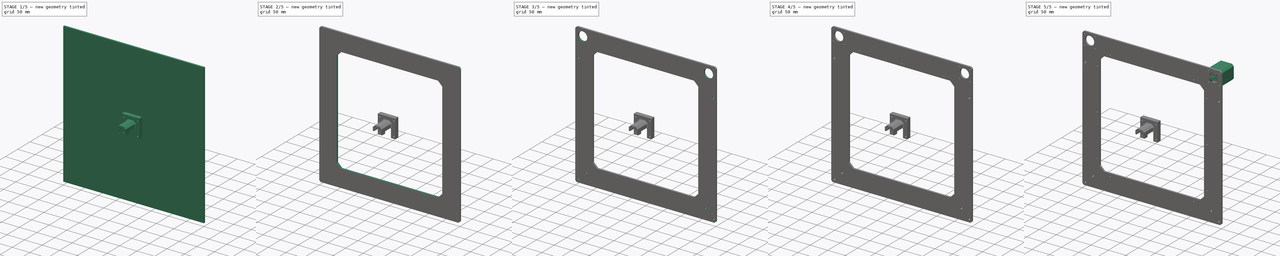
[diagram: build sequence overview — one tinted view per stage of 5, left to right]
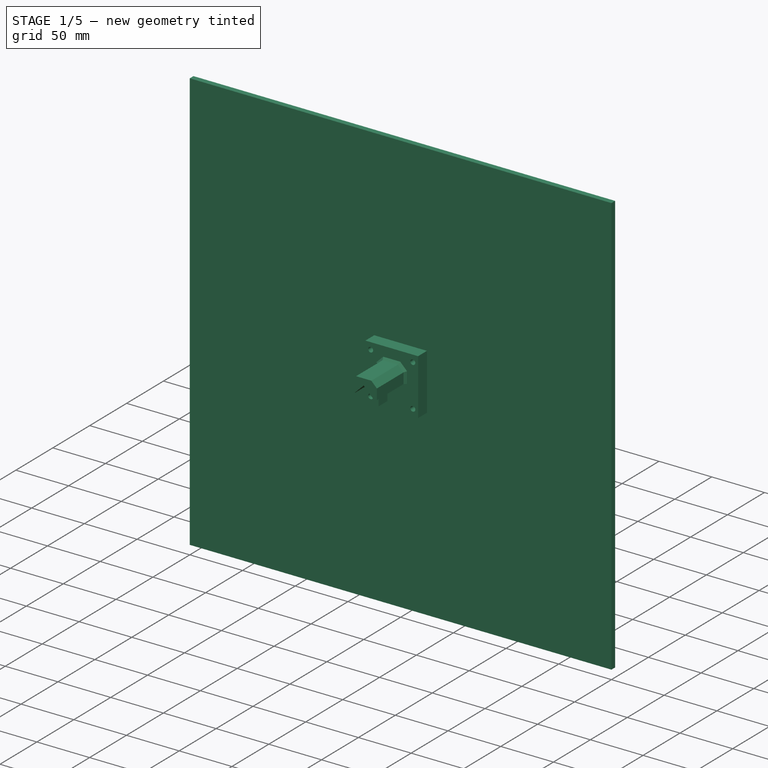
[diagram: stage 1 of 5 — iso view after this stage's code; geometry added in this stage tinted green]
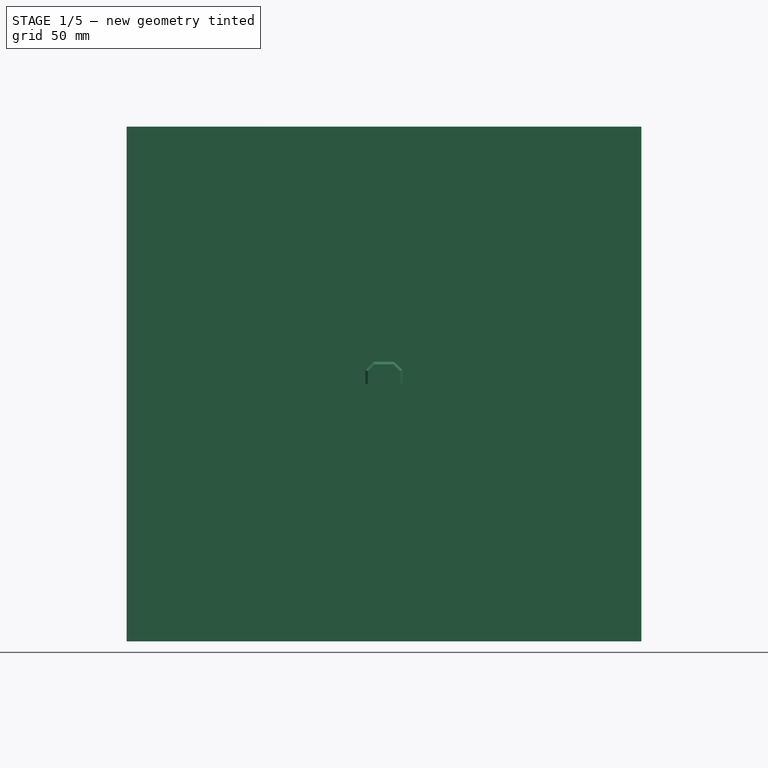
[diagram: stage 1 of 5 — front view after this stage's code; geometry added in this stage tinted green]
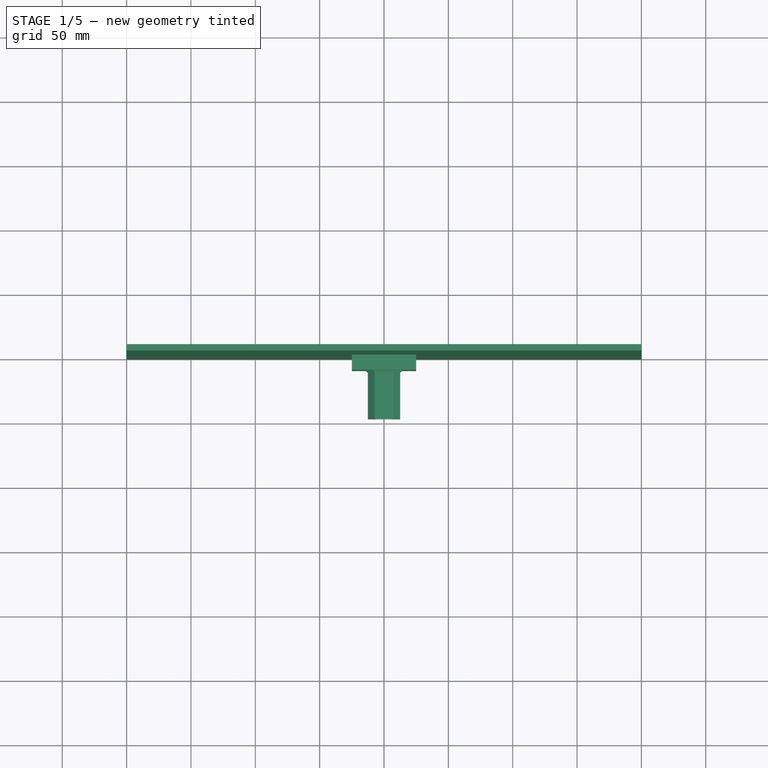
[diagram: stage 1 of 5 — top view after this stage's code; geometry added in this stage tinted green]
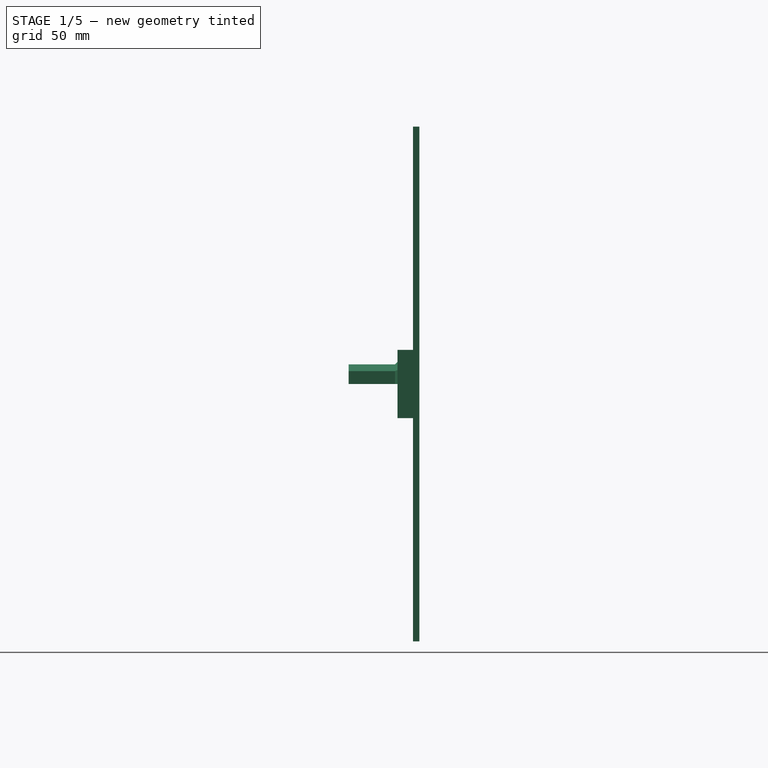
[diagram: stage 1 of 5 — right view after this stage's code; geometry added in this stage tinted green]
FCSTD DOCUMENT  (FreeCAD 0.20R29410 (Git))
Label: elastibot
License: Creative Commons Attribution-ShareAlike
LicenseURL: http://creativecommons.org/licenses/by-sa/4.0/
objects: Sketcher::SketchObject×12, PartDesign::Pad×6, PartDesign::Body×5, PartDesign::Pocket×5, PartDesign::Chamfer×4, PartDesign::Fillet×2, App::FeaturePython×1, PartDesign::Mirrored×1, PartDesign::FeaturePython×1, PartDesign::LinearPattern×1, App::Part×1, Part::FeaturePython×1, PartDesign::PolarPattern×1
note: 56 computed .brp shape members not serialized (recipe doc carries the construction recipe); baked Part::Feature solids carry a one-line shape summary decoded from their .brp

FEATURE [Sketcher::SketchObject] Sketch
  FullyConstrained = false
  MapMode = 5
  Support = -> [XY_Plane]
  expr: Constraints[12] = 40 / pi
  expr: Constraints[27] = 179mm
  sketch-geometry (37):
    g0: LineSegment StartX=-200 StartY=-200 StartZ=0 EndX=-200 EndY=200 EndZ=0
    g1: LineSegment StartX=-200 StartY=200 StartZ=0 EndX=200 EndY=200 EndZ=0
    g2: LineSegment StartX=200 StartY=200 StartZ=0 EndX=200 EndY=-200 EndZ=0
    g3: LineSegment StartX=200 StartY=-200 StartZ=0 EndX=-200 EndY=-200 EndZ=0
    g4: GeomPoint X=0 Y=0 Z=0
    g5: Circle CenterX=179 CenterY=179 CenterZ=0 NormalX=0 NormalY=0 NormalZ=1 AngleXU=0 Radius=6.3662
    g6: Circle CenterX=-179 CenterY=179 CenterZ=0 NormalX=0 NormalY=0 NormalZ=1 AngleXU=0 Radius=6.3662
    g7: LineSegment StartX=200 StartY=200 StartZ=0 EndX=200 EndY=158 EndZ=0
    g8: LineSegment StartX=200 StartY=158 StartZ=0 EndX=158 EndY=158 EndZ=0
    g9: LineSegment StartX=158 StartY=158 StartZ=0 EndX=158 EndY=200 EndZ=0
    g10: LineSegment StartX=158 StartY=200 StartZ=0 EndX=200 EndY=200 EndZ=0
    g11: GeomPoint X=179 Y=179 Z=0
    g12: LineSegment StartX=-30 StartY=30 StartZ=0 EndX=-30 EndY=-30 EndZ=0
    g13: LineSegment StartX=-30 StartY=-30 StartZ=0 EndX=30 EndY=-30 EndZ=0
    g14: LineSegment StartX=30 StartY=-30 StartZ=0 EndX=30 EndY=30 EndZ=0
    g15: LineSegment StartX=30 StartY=30 StartZ=0 EndX=-30 EndY=30 EndZ=0
    g16: GeomPoint X=-1.20919e-09 Y=3.52426e-10 Z=0
    g17: Circle CenterX=-1.20919e-09 CenterY=3.52426e-10 CenterZ=0 NormalX=0 NormalY=0 NormalZ=1 AngleXU=0 Radius=14.5726
    g18: LineSegment StartX=-200 StartY=200 StartZ=0 EndX=-200 EndY=158 EndZ=0
    g19: LineSegment StartX=-200 StartY=158 StartZ=0 EndX=-158 EndY=158 EndZ=0
    g20: LineSegment StartX=-158 StartY=158 StartZ=0 EndX=-158 EndY=200 EndZ=0
    g21: LineSegment StartX=-158 StartY=200 StartZ=0 EndX=-200 EndY=200 EndZ=0
    g22: GeomPoint X=-179 Y=179 Z=0
    g23: LineSegment StartX=30 StartY=30 StartZ=0 EndX=174.364 EndY=183.364 EndZ=0
    g24: LineSegment StartX=30 StartY=-30 StartZ=0 EndX=125.871 EndY=-85.6227 EndZ=0
    g25: LineSegment StartX=135.317 StartY=-81.3208 StartZ=0 EndX=185.251 EndY=177.795 EndZ=0
    g26: Circle CenterX=129.065 CenterY=-80.1162 CenterZ=0 NormalX=0 NormalY=0 NormalZ=1 AngleXU=0 Radius=6.3662
    g27: LineSegment StartX=-30 StartY=30 StartZ=0 EndX=-174.364 EndY=183.364 EndZ=0
    g28: LineSegment StartX=-30 StartY=-30 StartZ=0 EndX=-129.481 EndY=-92.2214 EndZ=0
    g29: LineSegment StartX=-139.129 StartY=-87.9128 StartZ=0 EndX=-185.272 EndY=177.911 EndZ=0
    g30: Circle CenterX=-132.856 CenterY=-86.824 CenterZ=0 NormalX=0 NormalY=0 NormalZ=1 AngleXU=0 Radius=6.3662
    g31: LineSegment StartX=-132.856 StartY=-86.824 StartZ=0 EndX=-170 EndY=-170 EndZ=0
    g32: LineSegment StartX=129.065 StartY=-80.1162 StartZ=0 EndX=170 EndY=-170 EndZ=0
    g33: LineSegment StartX=-170 StartY=-170 StartZ=0 EndX=192.125 EndY=-191.718 EndZ=0
    g34: LineSegment StartX=192.125 StartY=-191.718 StartZ=0 EndX=192.125 EndY=119.9 EndZ=0
    g35: LineSegment StartX=170 StartY=-170 StartZ=0 EndX=-192.125 EndY=-191.718 EndZ=0
    g36: LineSegment StartX=-192.125 StartY=-191.718 StartZ=0 EndX=-192.125 EndY=119.9 EndZ=0
  constraints (80):
    c: Coincident(g0,g1)
    c: Coincident(g1,g2)
    c: Coincident(g2,g3)
    c: Coincident(g3,g0)
    c: Horizontal(g1)
    c: Horizontal(g3)
    c: Vertical(g0)
    c: Vertical(g2)
    c: Symmetric(g1,g0,g4)
    c: Coincident(g4,g-1)
    c: Distance(g1) = 400
    c: Distance(g2) = 400
    c: Diameter(g5) = 12.7324
    c: Equal(g6,g5)
    c: Symmetric(g6,g5,g-2)
    c: Coincident(g7,g8)
    c: Coincident(g8,g9)
    c: Coincident(g9,g10)
    c: Coincident(g10,g7)
    c: Horizontal(g8)
    c: Horizontal(g10)
    c: Vertical(g7)
    c: Vertical(g9)
    c: Symmetric(g8,g7,g11)
    c: Coincident(g11,g5)
    c: Equal(g8,g9)
    c: Distance(g10) = 42
    c: DistanceX(g-2,g5) = 179
    c: DistanceY(g-1,g5) = 179
    c: Coincident(g12,g13)
    c: Coincident(g13,g14)
    c: Coincident(g14,g15)
    c: Coincident(g15,g12)
    c: Horizontal(g13)
    c: Horizontal(g15)
    c: Vertical(g12)
    c: Vertical(g14)
    c: Symmetric(g13,g12,g16)
    c: Equal(g13,g12)
    c: Distance(g15) = 60
    c: Coincident(g17,g16)
    c: Coincident(g18,g19)
    c: Coincident(g19,g20)
    c: Coincident(g20,g21)
    c: Coincident(g21,g18)
    c: Horizontal(g19)
    c: Horizontal(g21)
    c: Vertical(g18)
    c: Vertical(g20)
    c: Symmetric(g19,g18,g22)
    c: Coincident(g22,g6)
    c: Symmetric(g19,g8,g-2)
    c: Coincident(g14,g23)
    c: Coincident(g13,g24)
    c: Equal(g26,g5)
    c: Tangent(g25,g26) = -1.5708
    c: Tangent(g24,g26) = -1.5708
    c: Tangent(g25,g5) = -1.5708
    c: Tangent(g23,g5) = 1.5708
    c: Coincident(g27,g12)
    c: Coincident(g28,g12)
    c: Tangent(g27,g6) = -1.5708
    c: Tangent(g29,g6) = 1.5708
    c: Equal(g30,g5)
    c: Tangent(g29,g30) = 1.5708
    c: Tangent(g28,g30) = 1.5708
    c: Coincident(g31,g30)
    c: Coincident(g32,g26)
    c: Symmetric(g28,g29,g31)
    c: Distance(g31,g3) = 30
    c: Distance(g31,g0) = 30
    c: Symmetric(g31,g32,g-2)
    c: Symmetric(g24,g25,g32)
    c: Coincident(g31,g33)
    c: Coincident(g33,g34)
    c: Vertical(g34)
    c: Coincident(g32,g35)
    c: Coincident(g35,g36)
    c: Symmetric(g36,g34,g-2)
    c: Symmetric(g35,g33,g-2)
FEATURE [PartDesign::Body] Body  label="Simulation"
  Group = -> [Sketch]
  Origin = -> Origin
  Placement = pos=(0,0,0) rot=(1,0,0;1.5708rad)
FEATURE [App::FeaturePython] dd  label="Parameters"  # WARN: FeaturePython — macro-defined, semantics opaque (R4)
  DynamicData = Created with DynamicData (v2.46) workbench. | This is a simple container object built | for holding custom properties.
  ddFrame_heigth = 400
  ddFrame_opening_heigth = 300
  ddFrame_opening_width = 300
  ddFrame_thickness = 5
  ddFrame_width = 400
  ddM3_hole_diameter = 3.4
  ddM3_tapped_hole_diameter = 2.85
  ddM5_hole_diameter = 5.4
  ddM5_tapped_hole_diameter = 4.7
FEATURE [Sketcher::SketchObject] Sketch001
  FullyConstrained = true
  MapMode = 5
  Placement = pos=(0,0,0) rot=(1,0,0;1.5708rad)
  Support = -> [XZ_Plane001]
  expr: Constraints[10] = dd.ddFrame_width
  expr: Constraints[11] = dd.ddFrame_heigth
  sketch-geometry (5):
    g0: LineSegment StartX=200 StartY=-200 StartZ=0 EndX=200 EndY=200 EndZ=0
    g1: LineSegment StartX=200 StartY=200 StartZ=0 EndX=-200 EndY=200 EndZ=0
    g2: LineSegment StartX=-200 StartY=200 StartZ=0 EndX=-200 EndY=-200 EndZ=0
    g3: LineSegment StartX=-200 StartY=-200 StartZ=0 EndX=200 EndY=-200 EndZ=0
    g4: GeomPoint X=0 Y=0 Z=0
  constraints (12):
    c: Coincident(g0,g1)
    c: Coincident(g1,g2)
    c: Coincident(g2,g3)
    c: Coincident(g3,g0)
    c: Horizontal(g1)
    c: Horizontal(g3)
    c: Vertical(g0)
    c: Vertical(g2)
    c: Symmetric(g1,g0,g4)
    c: Coincident(g4,g-1)
    c: Distance(g1) = 400
    c: Distance(g2) = 400
FEATURE [PartDesign::Pad] Pad
  Direction = (0,-1,2e-16)
  Length = 5
  Length2 = 10
  Placement = pos=(0,0,0) rot=(1,0,0;1.5708rad)
  Profile = -> Sketch001
  ReferenceAxis = -> Sketch001 [N_Axis]
  Reversed = true
  Type = 0
  expr: Length = dd.ddFrame_thickness
FEATURE [PartDesign::Body] Body001  label="Frame"
  Group = -> [Sketch001,Pad,Chamfer,Fillet,Sketch002,Pocket,Chamfer001,Fillet001,Sketch003,Pocket001,Mirrored,Sketch008,Pocket003,Sketch009,Pocket004,PolarPattern]
  Origin = -> Origin001
  Tip = -> PolarPattern
FEATURE [Sketcher::SketchObject] Sketch010
  FullyConstrained = false
  MapMode = 5
  Placement = pos=(0,0,0) rot=(1,0,0;1.5708rad)
  Support = -> [XZ_Plane005]
  expr: Constraints[34] = dd.ddM5_tapped_hole_diameter
  sketch-geometry (17):
    g0: LineSegment StartX=-25 StartY=26.5205 StartZ=0 EndX=-25 EndY=-26.5205 EndZ=0
    g1: LineSegment StartX=-25 StartY=-26.5205 StartZ=0 EndX=-12.5 EndY=-26.5205 EndZ=0
    g2: LineSegment StartX=-12.5 StartY=-26.5205 StartZ=0 EndX=-12.5 EndY=10 EndZ=0
    g3: LineSegment StartX=-12.5 StartY=10 StartZ=0 EndX=12.5 EndY=10 EndZ=0
    g4: LineSegment StartX=12.5 StartY=10 StartZ=0 EndX=12.5 EndY=-26.5205 EndZ=0
    g5: LineSegment StartX=12.5 StartY=-26.5205 StartZ=0 EndX=25 EndY=-26.5205 EndZ=0
    g6: LineSegment StartX=25 StartY=-26.5205 StartZ=0 EndX=25 EndY=26.5205 EndZ=0
    g7: LineSegment StartX=25 StartY=26.5205 StartZ=0 EndX=-25 EndY=26.5205 EndZ=0
    g8: LineSegment StartX=20 StartY=-20 StartZ=0 EndX=20 EndY=20 EndZ=0
    g9: LineSegment StartX=20 StartY=20 StartZ=0 EndX=-20 EndY=20 EndZ=0
    g10: LineSegment StartX=-20 StartY=20 StartZ=0 EndX=-20 EndY=-20 EndZ=0
    g11: LineSegment StartX=-20 StartY=-20 StartZ=0 EndX=20 EndY=-20 EndZ=0
    g12: GeomPoint X=1.2e-15 Y=-1.3e-15 Z=0
    g13: Circle CenterX=-20 CenterY=-20 CenterZ=0 NormalX=0 NormalY=0 NormalZ=1 AngleXU=0 Radius=2.35
    g14: Circle CenterX=-20 CenterY=20 CenterZ=0 NormalX=0 NormalY=0 NormalZ=1 AngleXU=0 Radius=2.35
    g15: Circle CenterX=20 CenterY=20 CenterZ=0 NormalX=0 NormalY=0 NormalZ=1 AngleXU=0 Radius=2.35
    g16: Circle CenterX=20 CenterY=-20 CenterZ=0 NormalX=0 NormalY=0 NormalZ=1 AngleXU=0 Radius=2.35
  constraints (39):
    c: Coincident(g0,g1)
    c: Horizontal(g1)
    c: Coincident(g1,g2)
    c: Vertical(g2)
    c: Coincident(g2,g3)
    c: Horizontal(g3)
    c: Coincident(g3,g4)
    c: Vertical(g4)
    c: Coincident(g4,g5)
    c: Coincident(g5,g6)
    c: Coincident(g6,g7)
    c: Coincident(g7,g0)
    c: Coincident(g8,g9)
    c: Coincident(g9,g10)
    c: Coincident(g10,g11)
    c: Coincident(g11,g8)
    c: Horizontal(g9)
    c: Horizontal(g11)
    c: Vertical(g8)
    c: Vertical(g10)
    c: Symmetric(g9,g8,g12)
    c: Coincident(g12,g-1)
    c: Equal(g9,g10)
    c: Distance(g9) = 40
    c: Symmetric(g6,g0,g-2)
    c: Symmetric(g5,g0,g-2)
    c: Symmetric(g1,g4,g-2)
    c: Coincident(g13,g10)
    c: Coincident(g14,g9)
    c: Coincident(g15,g8)
    c: Coincident(g16,g8)
    c: Equal(g16,g15)
    c: Equal(g16,g13)
    c: Equal(g16,g14)
    c: Diameter(g16) = 4.7
    c: Distance(g7) = 50
    c: Symmetric(g0,g0,g-1)
    c: Distance(g1,g4) = 25
    c: DistanceY(g-1,g2) = 10
FEATURE [PartDesign::Pad] Pad004
  Direction = (0,-1,2e-16)
  Length = 12
  Length2 = 10
  Placement = pos=(0,0,0) rot=(1,0,0;1.5708rad)
  Profile = -> Sketch010
  ReferenceAxis = -> Sketch010 [N_Axis]
  Type = 0
FEATURE [Sketcher::SketchObject] Sketch011
  ExternalGeometry = -> [Pad004]
  FullyConstrained = false
  MapMode = 5
  Placement = pos=(0,0,0) rot=(1,0,0;1.5708rad)
  Support = -> [XZ_Plane005]
  sketch-geometry (9):
    g0: LineSegment StartX=-12.5 StartY=0 StartZ=0 EndX=-9.24577 EndY=0 EndZ=0
    g1: LineSegment StartX=-9.24577 StartY=0 StartZ=0 EndX=0 EndY=9.24577 EndZ=0
    g2: LineSegment StartX=0 StartY=9.24577 StartZ=0 EndX=9.24577 EndY=0 EndZ=0
    g3: LineSegment StartX=9.24577 StartY=0 StartZ=0 EndX=12.5 EndY=0 EndZ=0
    g4: LineSegment StartX=12.5 StartY=0 StartZ=0 EndX=12.5 EndY=10 EndZ=0
    g5: LineSegment StartX=12.5 StartY=10 StartZ=0 EndX=7.23318 EndY=15.2668 EndZ=0
    g6: LineSegment StartX=7.23318 StartY=15.2668 StartZ=0 EndX=-7.23318 EndY=15.2668 EndZ=0
    g7: LineSegment StartX=-7.23318 StartY=15.2668 StartZ=0 EndX=-12.5 EndY=10 EndZ=0
    g8: LineSegment StartX=-12.5 StartY=10 StartZ=0 EndX=-12.5 EndY=0 EndZ=0
  constraints (21):
    c: PointOnObject(g0,g-3)
    c: PointOnObject(g0,g-1)
    c: Horizontal(g0)
    c: Coincident(g0,g1)
    c: PointOnObject(g1,g-2)
    c: Coincident(g1,g2)
    c: Coincident(g2,g3)
    c: PointOnObject(g3,g-5)
    c: Horizontal(g3)
    c: Coincident(g3,g4)
    c: Coincident(g4,g-5)
    c: Coincident(g4,g5)
    c: Coincident(g5,g6)
    c: Coincident(g6,g7)
    c: Coincident(g7,g-4)
    c: Coincident(g7,g8)
    c: Coincident(g8,g0)
    c: Symmetric(g6,g5,g-2)
    c: Angle(g1,g2) = 1.5708
    c: Symmetric(g2,g0,g-2)
    c: Angle(g-4,g7) = 0.785398
FEATURE [PartDesign::Pad] Pad005
  BaseFeature = -> Pad004
  Direction = (0,-1,2e-16)
  Length = 50
  Length2 = 10
  Placement = pos=(0,0,0) rot=(1,0,0;1.5708rad)
  Profile = -> Sketch011
  ReferenceAxis = -> Sketch011 [N_Axis]
  Type = 0
FEATURE [PartDesign::Chamfer] Chamfer003
  Angle = 45
  Base = -> Pad005 [Edge25,Edge26,Edge27,Edge28,Edge29]
  BaseFeature = -> Pad005
  ChamferType = 0
  FlipDirection = false
  Placement = pos=(0,0,0) rot=(1,0,0;1.5708rad)
  Size = 2
  Size2 = 1
  SupportTransform = false
  UseAllEdges = false
FEATURE [PartDesign::Body] Body004  label="Mover"
  Group = -> [Sketch010,Pad004,Sketch011,Pad005,Chamfer003]
  Origin = -> Origin005
  Tip = -> Chamfer003
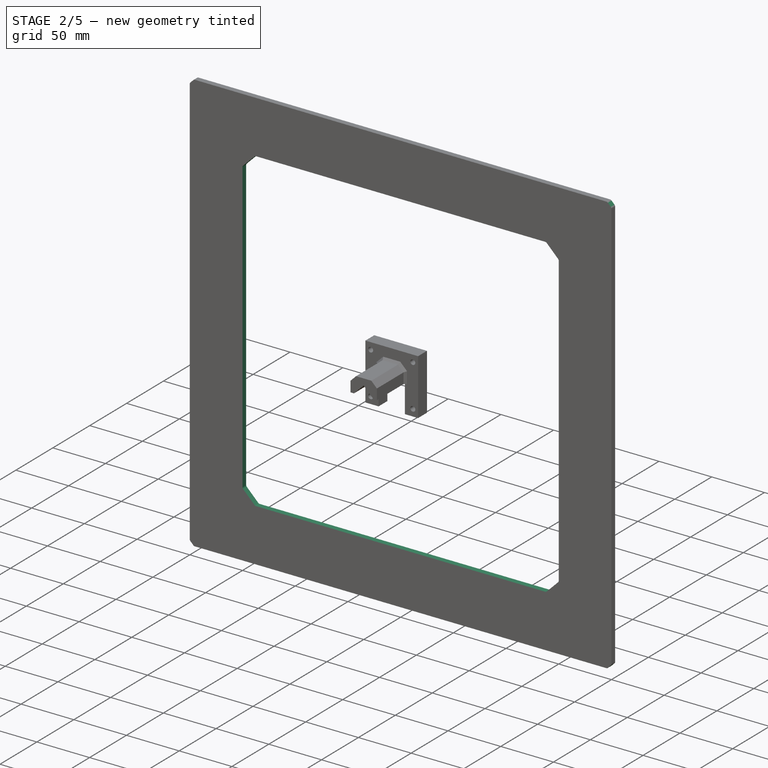
[diagram: stage 2 of 5 — iso view after this stage's code; geometry added in this stage tinted green]
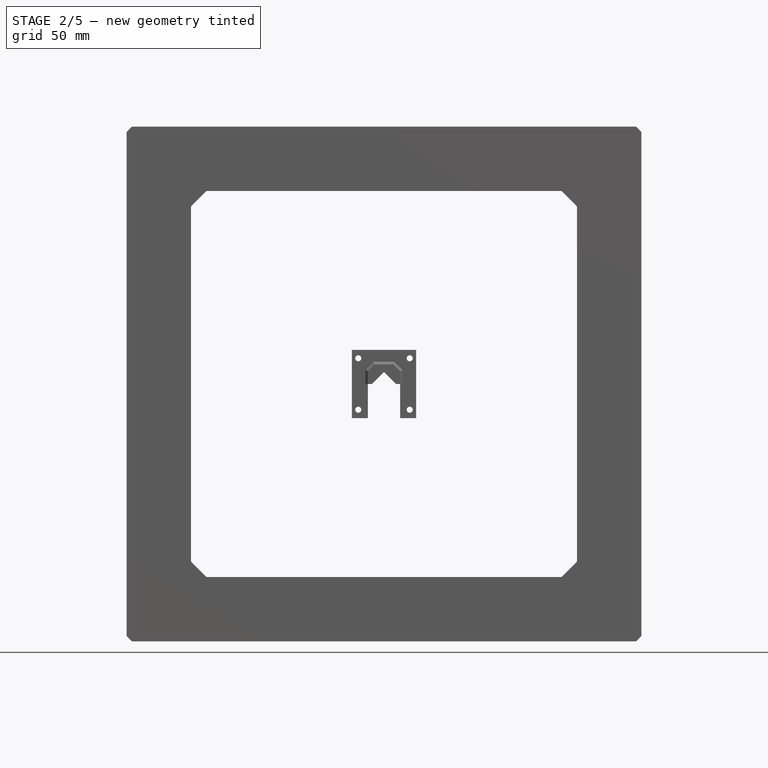
[diagram: stage 2 of 5 — front view after this stage's code; geometry added in this stage tinted green]
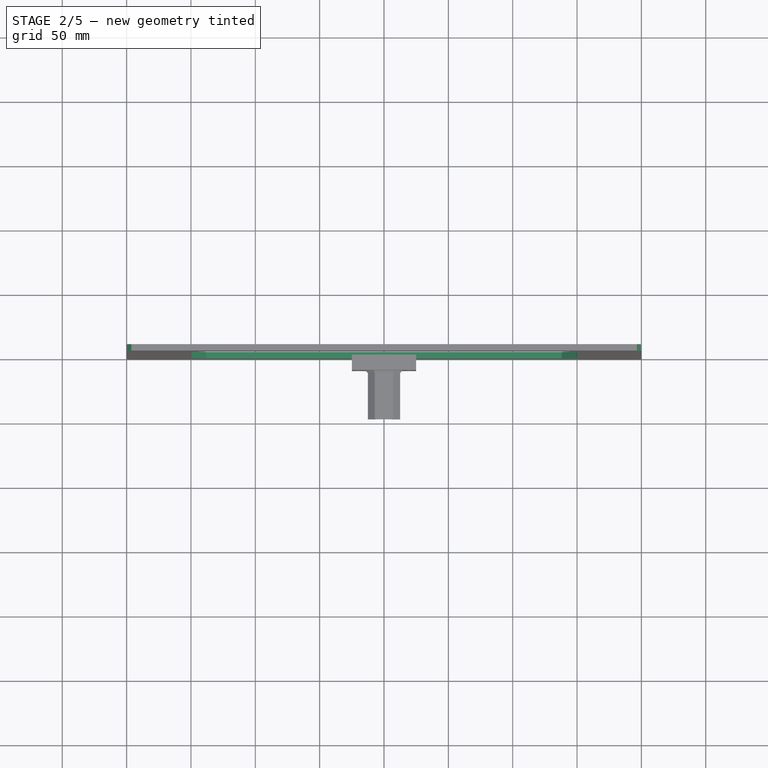
[diagram: stage 2 of 5 — top view after this stage's code; geometry added in this stage tinted green]
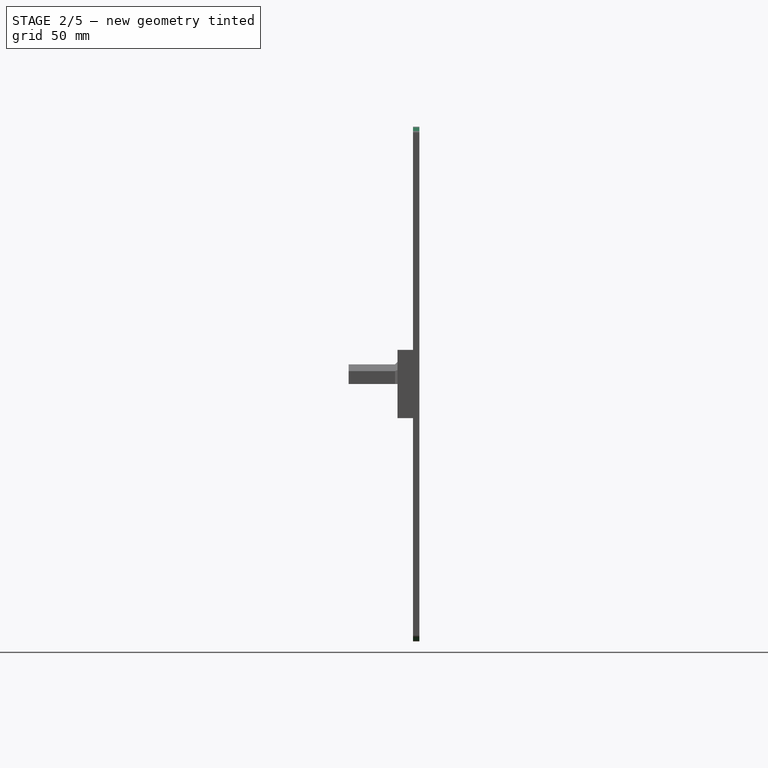
[diagram: stage 2 of 5 — right view after this stage's code; geometry added in this stage tinted green]
FEATURE [PartDesign::Chamfer] Chamfer
  Angle = 45
  Base = -> Pad [Edge5,Edge2,Edge1,Edge8]
  BaseFeature = -> Pad
  ChamferType = 0
  FlipDirection = false
  Placement = pos=(0,0,0) rot=(1,0,0;1.5708rad)
  Size = 4
  Size2 = 1
  SupportTransform = false
  UseAllEdges = false
FEATURE [PartDesign::Fillet] Fillet
  Base = -> Chamfer [Edge14,Edge3,Edge2,Edge12,Edge23,Edge21,Edge24,Edge22]
  BaseFeature = -> Chamfer
  Placement = pos=(0,0,0) rot=(1,0,0;1.5708rad)
  Radius = 2
  SupportTransform = false
  UseAllEdges = false
FEATURE [Sketcher::SketchObject] Sketch002
  FullyConstrained = true
  MapMode = 5
  Placement = pos=(0,0,0) rot=(1,0,0;1.5708rad)
  Support = -> [XZ_Plane001]
  expr: Constraints[10] = dd.ddFrame_opening_width
  expr: Constraints[11] = dd.ddFrame_opening_heigth
  sketch-geometry (5):
    g0: LineSegment StartX=150 StartY=-150 StartZ=0 EndX=150 EndY=150 EndZ=0
    g1: LineSegment StartX=150 StartY=150 StartZ=0 EndX=-150 EndY=150 EndZ=0
    g2: LineSegment StartX=-150 StartY=150 StartZ=0 EndX=-150 EndY=-150 EndZ=0
    g3: LineSegment StartX=-150 StartY=-150 StartZ=0 EndX=150 EndY=-150 EndZ=0
    g4: GeomPoint X=0 Y=0 Z=0
  constraints (12):
    c: Coincident(g0,g1)
    c: Coincident(g1,g2)
    c: Coincident(g2,g3)
    c: Coincident(g3,g0)
    c: Horizontal(g1)
    c: Horizontal(g3)
    c: Vertical(g0)
    c: Vertical(g2)
    c: Symmetric(g1,g0,g4)
    c: Coincident(g4,g-1)
    c: Distance(g1) = 300
    c: Distance(g0) = 300
FEATURE [PartDesign::Pocket] Pocket
  BaseFeature = -> Fillet
  Direction = (0,1,-2e-16)
  Length = 5
  Length2 = 5
  Placement = pos=(0,0,0) rot=(1,0,0;1.5708rad)
  Profile = -> Sketch002
  ReferenceAxis = -> Sketch002 [N_Axis]
  Type = 1
FEATURE [PartDesign::Chamfer] Chamfer001
  Angle = 45
  Base = -> Pocket [Edge58,Edge57,Edge60,Edge59]
  BaseFeature = -> Pocket
  ChamferType = 0
  FlipDirection = false
  Placement = pos=(0,0,0) rot=(1,0,0;1.5708rad)
  Size = 12
  Size2 = 1
  SupportTransform = false
  UseAllEdges = false
FEATURE [PartDesign::Fillet] Fillet001
  Base = -> Chamfer001 [Edge36,Edge32,Edge28,Edge25,Edge34,Edge38,Edge30,Edge26]
  BaseFeature = -> Chamfer001
  Placement = pos=(0,0,0) rot=(1,0,0;1.5708rad)
  Radius = 2
  SupportTransform = false
  UseAllEdges = false
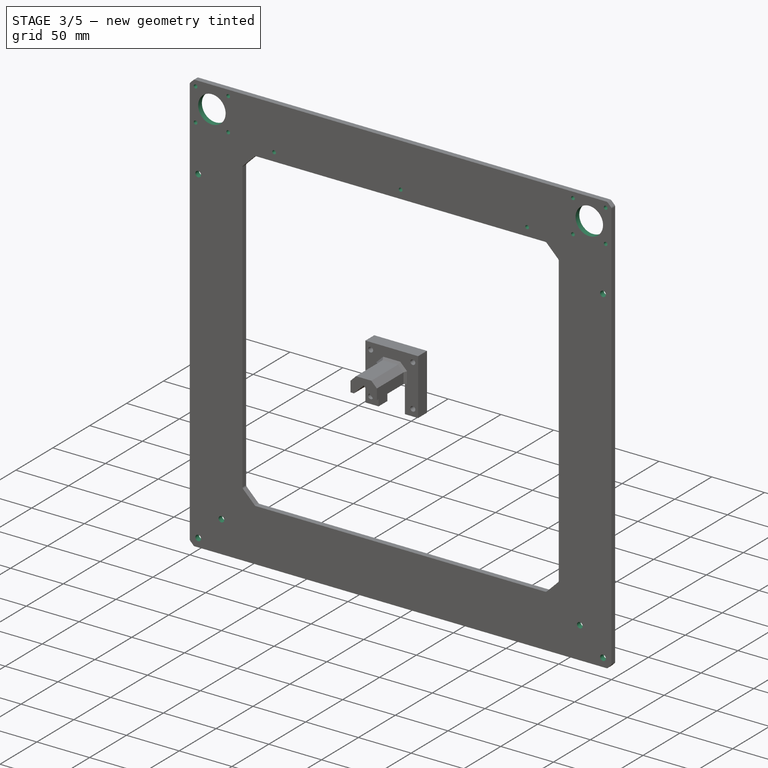
[diagram: stage 3 of 5 — iso view after this stage's code; geometry added in this stage tinted green]
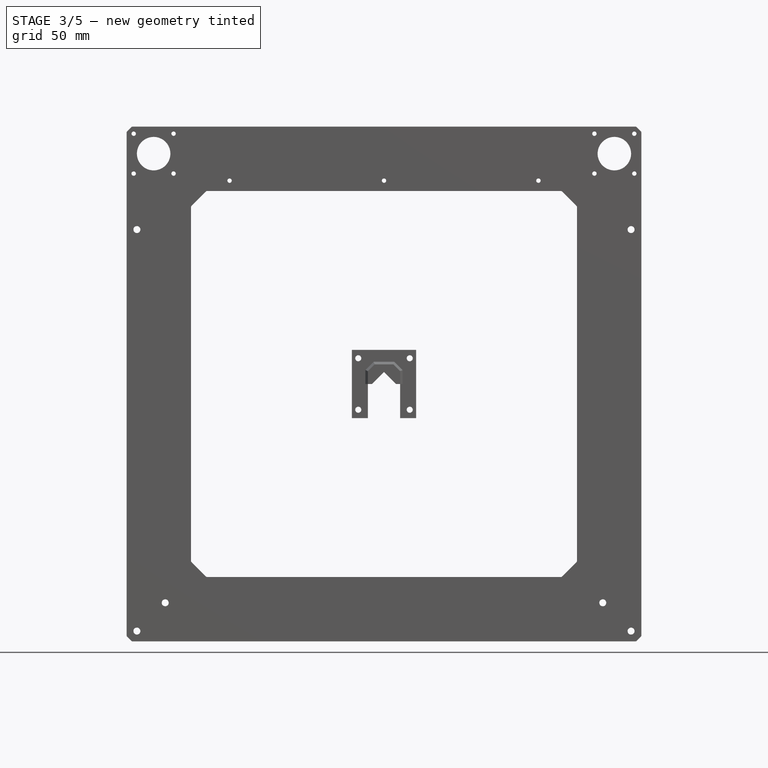
[diagram: stage 3 of 5 — front view after this stage's code; geometry added in this stage tinted green]
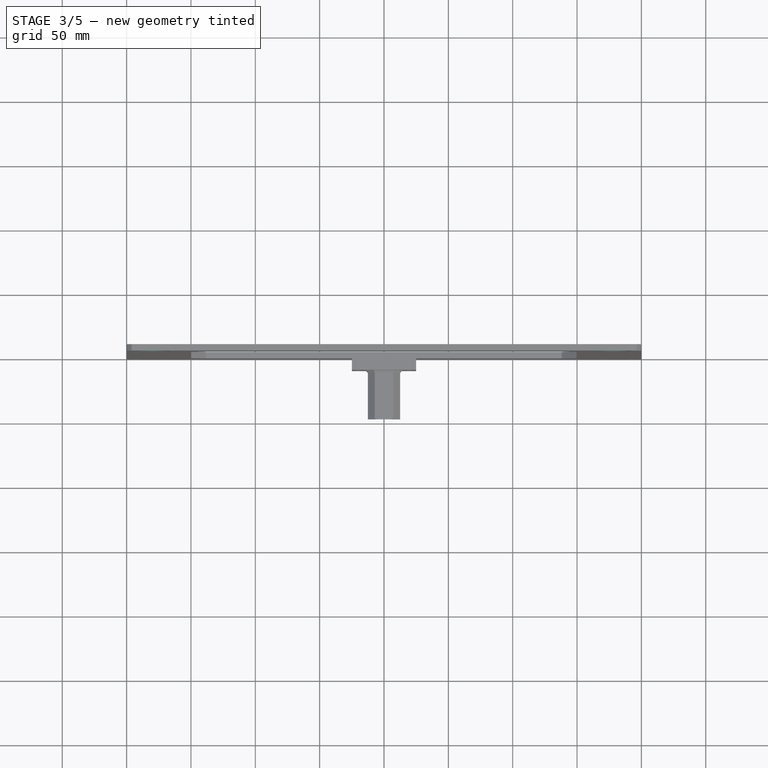
[diagram: stage 3 of 5 — top view after this stage's code; geometry added in this stage tinted green]
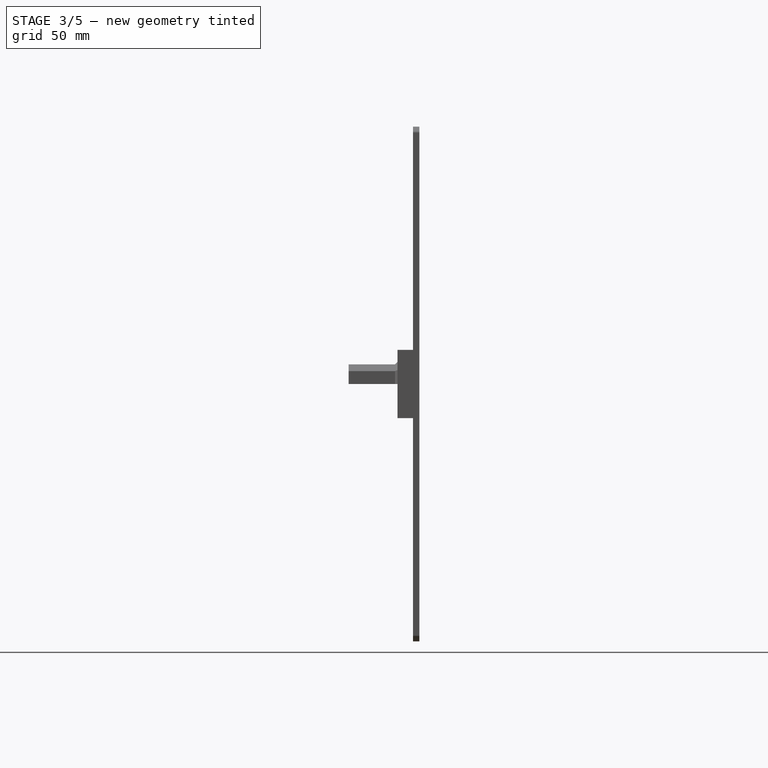
[diagram: stage 3 of 5 — right view after this stage's code; geometry added in this stage tinted green]
FEATURE [Sketcher::SketchObject] Sketch003
  FullyConstrained = true
  MapMode = 5
  Placement = pos=(0,0,0) rot=(1,0,0;1.5708rad)
  Support = -> [XZ_Plane001]
  expr: .Constraints.motorx = dd.ddFrame_width / -2 + 21
  expr: .Constraints.motorz = dd.ddFrame_heigth / 2 - 21
  expr: Constraints[22] = dd.ddM3_hole_diameter
  sketch-geometry (10):
    g0: LineSegment StartX=-194.5 StartY=194.5 StartZ=0 EndX=-194.5 EndY=163.5 EndZ=0
    g1: LineSegment StartX=-194.5 StartY=163.5 StartZ=0 EndX=-163.5 EndY=163.5 EndZ=0
    g2: LineSegment StartX=-163.5 StartY=163.5 StartZ=0 EndX=-163.5 EndY=194.5 EndZ=0
    g3: LineSegment StartX=-163.5 StartY=194.5 StartZ=0 EndX=-194.5 EndY=194.5 EndZ=0
    g4: GeomPoint X=-179 Y=179 Z=0
    g5: Circle CenterX=-179 CenterY=179 CenterZ=0 NormalX=0 NormalY=0 NormalZ=1 AngleXU=0 Radius=13
    g6: Circle CenterX=-163.5 CenterY=194.5 CenterZ=0 NormalX=0 NormalY=0 NormalZ=1 AngleXU=0 Radius=1.7
    g7: Circle CenterX=-194.5 CenterY=194.5 CenterZ=0 NormalX=0 NormalY=0 NormalZ=1 AngleXU=0 Radius=1.7
    g8: Circle CenterX=-194.5 CenterY=163.5 CenterZ=0 NormalX=0 NormalY=0 NormalZ=1 AngleXU=0 Radius=1.7
    g9: Circle CenterX=-163.5 CenterY=163.5 CenterZ=0 NormalX=0 NormalY=0 NormalZ=1 AngleXU=0 Radius=1.7
  constraints (23):
    c: Coincident(g0,g1)
    c: Coincident(g1,g2)
    c: Coincident(g2,g3)
    c: Coincident(g3,g0)
    c: Horizontal(g1)
    c: Horizontal(g3)
    c: Vertical(g0)
    c: Vertical(g2)
    c: Symmetric(g1,g0,g4)
    c: Coincident(g5,g4)
    c: Distance(g3) = 31
    c: Equal(g3,g2)
    c: Diameter(g5) = 26
    c: Coincident(g6,g2)
    c: Coincident(g7,g0)
    c: Coincident(g8,g0)
    c: Coincident(g9,g1)
    c: DistanceX(g-2,g5) = -179  'motorx'
    c: DistanceY(g-1,g5) = 179  'motorz'
    c: Equal(g7,g6)
    c: Equal(g7,g9)
    c: Equal(g7,g8)
    c: Diameter(g7) = 3.4
FEATURE [PartDesign::Pocket] Pocket001
  BaseFeature = -> Fillet001
  Direction = (0,1,-2e-16)
  Length = 5
  Length2 = 5
  Placement = pos=(0,0,0) rot=(1,0,0;1.5708rad)
  Profile = -> Sketch003
  ReferenceAxis = -> Sketch003 [N_Axis]
  Type = 1
FEATURE [PartDesign::Mirrored] Mirrored
  BaseFeature = -> Pocket001
  MirrorPlane = -> Sketch003 [V_Axis]
  Originals = -> [Pocket001]
  Placement = pos=(0,0,0) rot=(1,0,0;1.5708rad)
FEATURE [Sketcher::SketchObject] Sketch008
  FullyConstrained = true
  MapMode = 5
  Placement = pos=(0,0,0) rot=(1,0,0;1.5708rad)
  Support = -> [XZ_Plane001]
  expr: Constraints[10] = dd.ddFrame_heigth / -2 + 8
  expr: Constraints[11] = dd.ddFrame_width / -2 + 8
  expr: Constraints[13] = dd.ddFrame_heigth / 2 - 80
  expr: Constraints[14] = dd.ddFrame_width / -2 + 30
  expr: Constraints[15] = dd.ddFrame_width / -2 + 30
  expr: Constraints[5] = dd.ddM5_hole_diameter
  expr: Constraints[9] = dd.ddM5_hole_diameter
  sketch-geometry (6):
    g0: Circle CenterX=-192 CenterY=120 CenterZ=0 NormalX=0 NormalY=0 NormalZ=1 AngleXU=0 Radius=2.7
    g1: Circle CenterX=-192 CenterY=-192 CenterZ=0 NormalX=0 NormalY=0 NormalZ=1 AngleXU=0 Radius=2.7
    g2: Circle CenterX=192 CenterY=-192 CenterZ=0 NormalX=0 NormalY=0 NormalZ=1 AngleXU=0 Radius=2.7
    g3: Circle CenterX=192 CenterY=120 CenterZ=0 NormalX=0 NormalY=0 NormalZ=1 AngleXU=0 Radius=2.7
    g4: Circle CenterX=170 CenterY=-170 CenterZ=0 NormalX=0 NormalY=0 NormalZ=1 AngleXU=0 Radius=2.7
    g5: Circle CenterX=-170 CenterY=-170 CenterZ=0 NormalX=0 NormalY=0 NormalZ=1 AngleXU=0 Radius=2.7
  constraints (16):
    c: Vertical(g1,g0)
    c: Vertical(g3,g2)
    c: Symmetric(g5,g4,g-2)
    c: Horizontal(g3,g0)
    c: Equal(g0,g3)
    c: Diameter(g0) = 5.4
    c: Equal(g2,g4)
    c: Equal(g2,g5)
    c: Equal(g2,g1)
    c: Diameter(g2) = 5.4
    c: DistanceY(g-1,g1) = -192
    c: DistanceX(g-2,g1) = -192
    c: Symmetric(g2,g1,g-2)
    c: DistanceY(g-1,g0) = 120
    c: DistanceX(g-2,g5) = -170
    c: DistanceY(g-1,g5) = -170
FEATURE [PartDesign::Pocket] Pocket003
  BaseFeature = -> Mirrored
  Direction = (0,1,-2e-16)
  Length = 5
  Length2 = 5
  Placement = pos=(0,0,0) rot=(1,0,0;1.5708rad)
  Profile = -> Sketch008
  ReferenceAxis = -> Sketch008 [N_Axis]
  Type = 1
FEATURE [Sketcher::SketchObject] Sketch009
  FullyConstrained = true
  MapMode = 5
  Placement = pos=(0,0,0) rot=(1,0,0;1.5708rad)
  Support = -> [XZ_Plane001]
  expr: Constraints[5] = dd.ddM3_hole_diameter
  expr: Constraints[6] = dd.ddFrame_opening_heigth / 2 + 8
  expr: Constraints[7] = dd.ddFrame_opening_width / 2 - 30
  sketch-geometry (3):
    g0: Circle CenterX=-120 CenterY=158 CenterZ=0 NormalX=0 NormalY=0 NormalZ=1 AngleXU=0 Radius=1.7
    g1: Circle CenterX=0 CenterY=158 CenterZ=0 NormalX=0 NormalY=0 NormalZ=1 AngleXU=0 Radius=1.7
    g2: Circle CenterX=120 CenterY=158 CenterZ=0 NormalX=0 NormalY=0 NormalZ=1 AngleXU=0 Radius=1.7
  constraints (8):
    c: PointOnObject(g1,g-2)
    c: Symmetric(g2,g0,g-2)
    c: Horizontal(g0,g1)
    c: Equal(g1,g0)
    c: Equal(g1,g2)
    c: Diameter(g1) = 3.4
    c: DistanceY(g-1,g1) = 158
    c: DistanceX(g-2,g2) = 120
FEATURE [PartDesign::Pocket] Pocket004
  BaseFeature = -> Pocket003
  Direction = (0,1,-2e-16)
  Length = 5
  Length2 = 5
  Placement = pos=(0,0,0) rot=(1,0,0;1.5708rad)
  Profile = -> Sketch009
  ReferenceAxis = -> Sketch009 [N_Axis]
  Type = 1
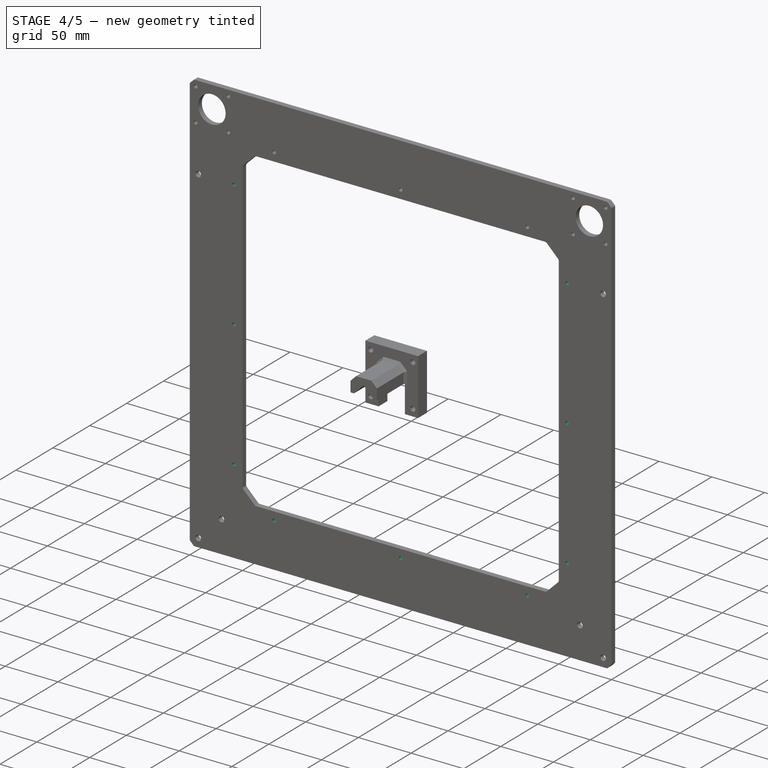
[diagram: stage 4 of 5 — iso view after this stage's code; geometry added in this stage tinted green]
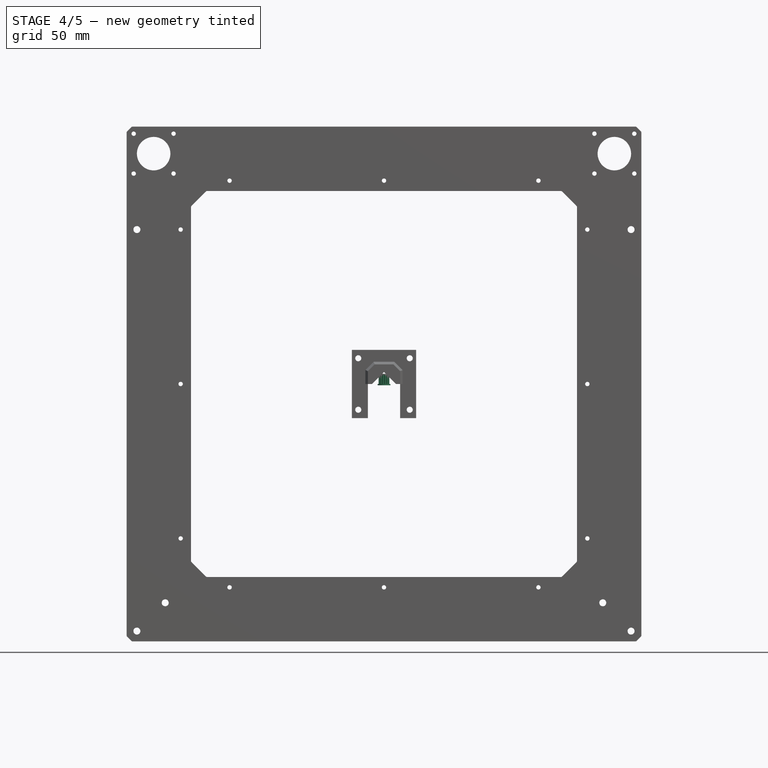
[diagram: stage 4 of 5 — front view after this stage's code; geometry added in this stage tinted green]
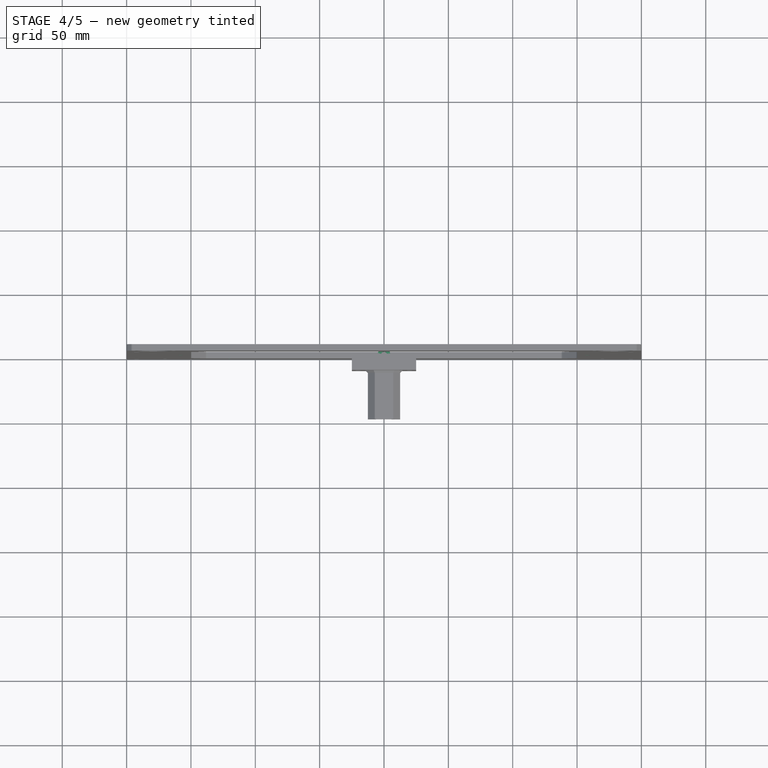
[diagram: stage 4 of 5 — top view after this stage's code; geometry added in this stage tinted green]
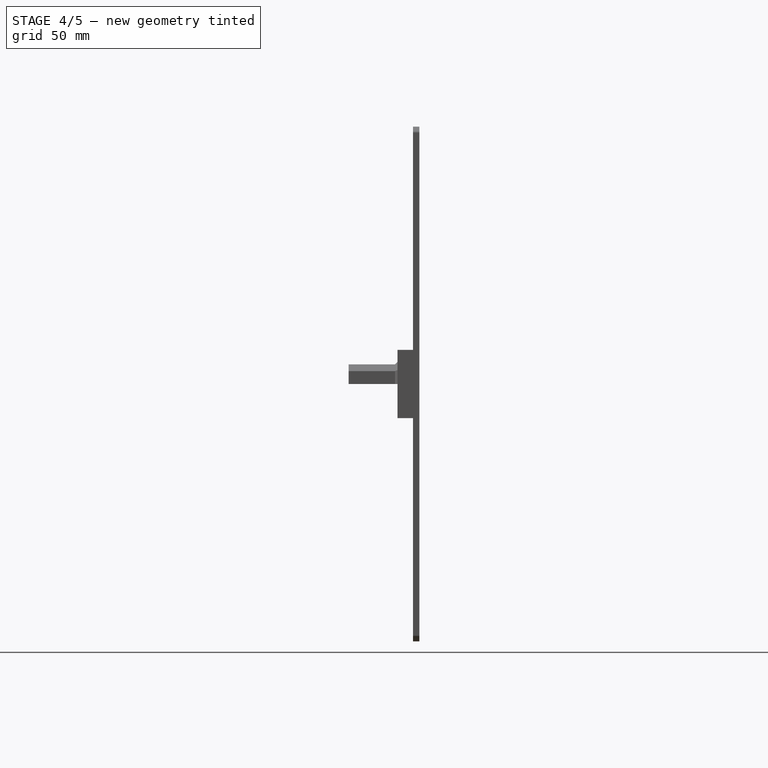
[diagram: stage 4 of 5 — right view after this stage's code; geometry added in this stage tinted green]
FEATURE [PartDesign::Body] Body002  label="Nema17 stepper motor"
  Group = -> [Sketch004,Pad001,Chamfer002,Sketch005,Pad002]
  Origin = -> Origin002
  Placement = pos=(-179,5,179) rot=(0,0,1;0rad)
  Tip = -> Pad002
  expr: .Placement.Base.x = Sketch003.Constraints.motorx
  expr: .Placement.Base.y = dd.ddFrame_thickness
  expr: .Placement.Base.z = Sketch003.Constraints.motorz
FEATURE [PartDesign::FeaturePython] timinggear  # WARN: FeaturePython — macro-defined, semantics opaque (R4)
  AttacherType = Attacher::AttachEngine3D
  h = 0.75
  height = 7
  offset = 0.4
  pitch = 2
  r0 = 0.555
  r1 = 1
  rs = 0.15
  teeth = 14
  type = 0
  u = 0.254
  version = 0.0.3
FEATURE [Sketcher::SketchObject] Sketch006
  FullyConstrained = true
  MapMode = 5
  Support = -> [XY_Plane004]
  sketch-geometry (1):
    g0: Circle CenterX=0 CenterY=0 CenterZ=0 NormalX=0 NormalY=0 NormalZ=1 AngleXU=0 Radius=5
  constraints (2):
    c: Coincident(g0,g-1)
    c: Diameter(g0) = 10
FEATURE [PartDesign::Pad] Pad003
  BaseFeature = -> timinggear
  Direction = (0,0,1)
  Length = 1
  Length2 = 10
  Profile = -> Sketch006
  ReferenceAxis = -> Sketch006 [N_Axis]
  Reversed = true
  Type = 0
FEATURE [PartDesign::LinearPattern] LinearPattern
  BaseFeature = -> Pad003
  Direction = -> Z_Axis004
  Length = 8
  Occurrences = 2
  Originals = -> [Pad003]
  expr: Length = timinggear.height + Pad003.Length
FEATURE [Sketcher::SketchObject] Sketch007
  AttachmentOffset = pos=(0,0,-1) rot=(0,0,1;0rad)
  FullyConstrained = true
  MapMode = 5
  Placement = pos=(0,0,-1) rot=(0,0,1;0rad)
  Support = -> [XY_Plane004]
  expr: .AttachmentOffset.Base.z = -Pad003.Length
  sketch-geometry (1):
    g0: Circle CenterX=0 CenterY=0 CenterZ=0 NormalX=0 NormalY=0 NormalZ=1 AngleXU=0 Radius=2.5
  constraints (2):
    c: Coincident(g0,g-1)
    c: Diameter(g0) = 5
FEATURE [PartDesign::Pocket] Pocket002
  BaseFeature = -> LinearPattern
  Direction = (0,0,-1)
  Length = 5
  Length2 = 5
  Profile = -> Sketch007
  ReferenceAxis = -> Sketch007 [N_Axis]
  Reversed = true
  Type = 1
FEATURE [PartDesign::PolarPattern] PolarPattern
  Angle = 360
  Axis = -> Sketch009 [N_Axis]
  BaseFeature = -> Pocket004
  Occurrences = 4
  Originals = -> [Pocket004]
  Placement = pos=(0,0,0) rot=(1,0,0;1.5708rad)
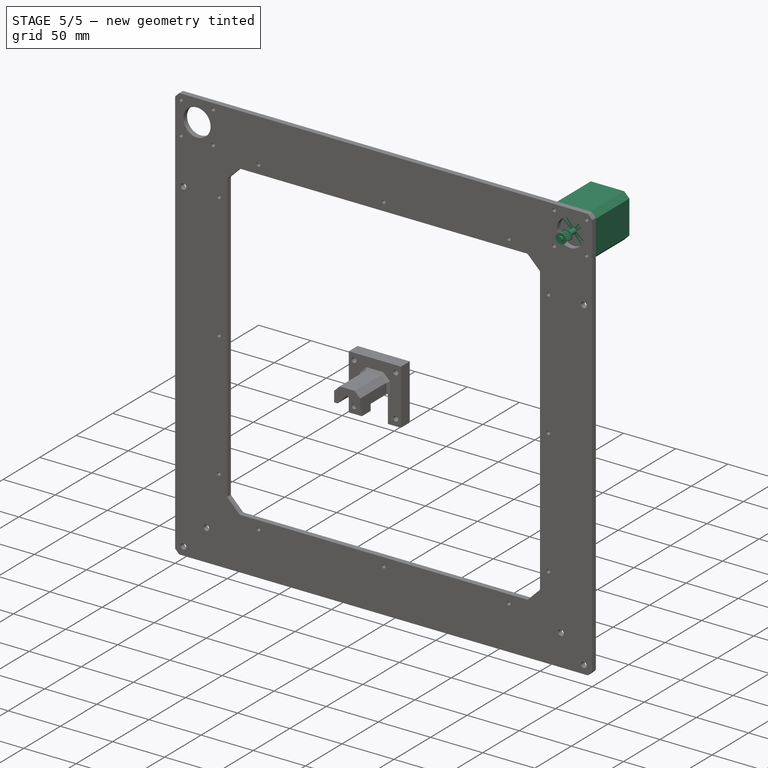
[diagram: stage 5 of 5 — iso view after this stage's code; geometry added in this stage tinted green]
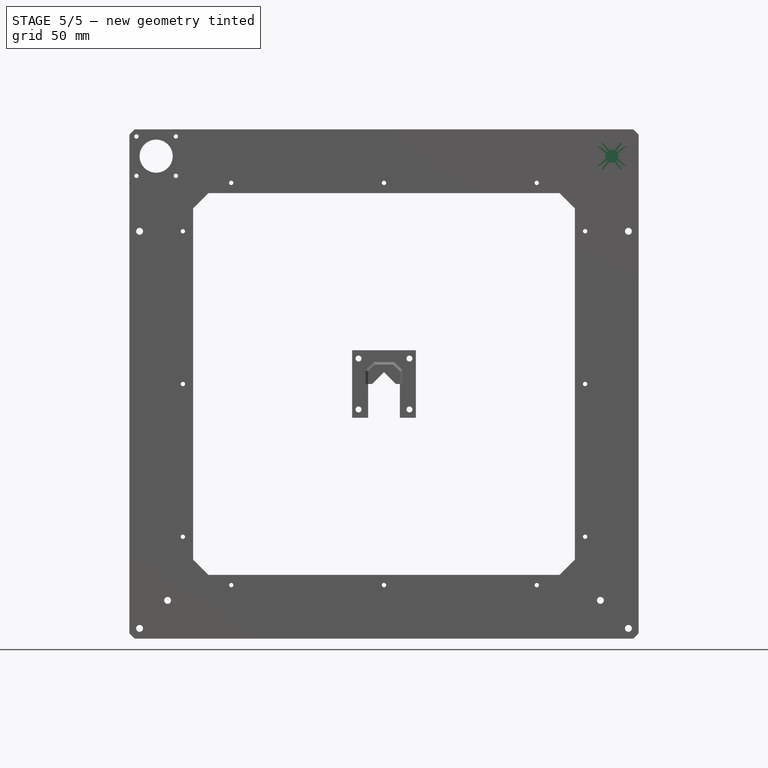
[diagram: stage 5 of 5 — front view after this stage's code; geometry added in this stage tinted green]
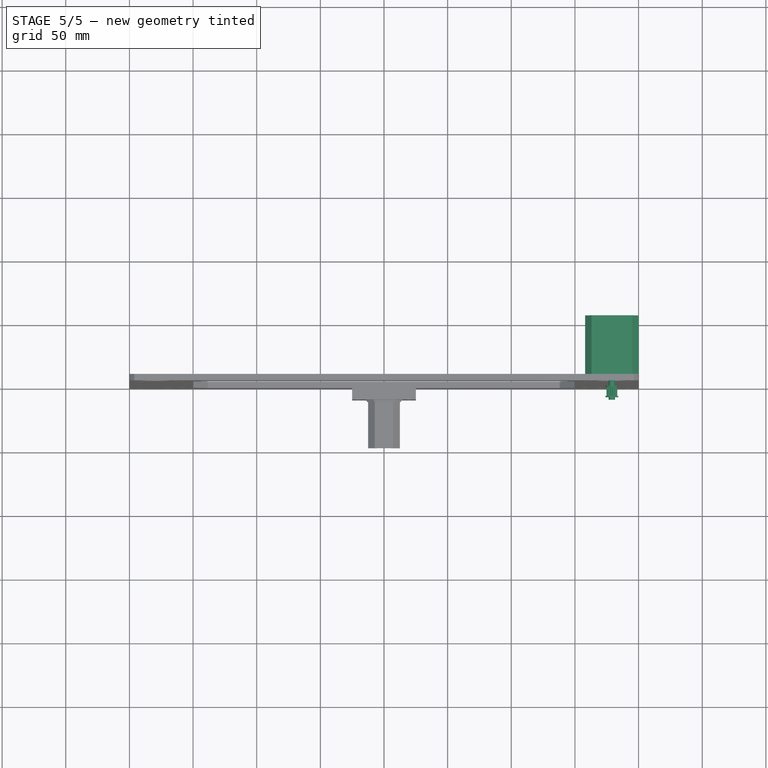
[diagram: stage 5 of 5 — top view after this stage's code; geometry added in this stage tinted green]
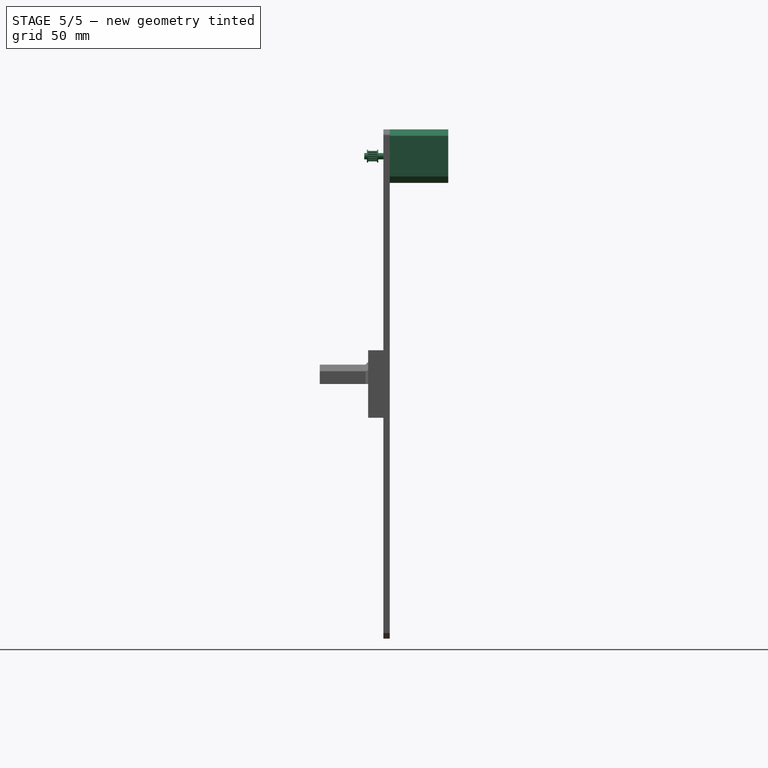
[diagram: stage 5 of 5 — right view after this stage's code; geometry added in this stage tinted green]
FEATURE [Sketcher::SketchObject] Sketch004
  FullyConstrained = true
  MapMode = 5
  Placement = pos=(0,0,0) rot=(1,0,0;1.5708rad)
  Support = -> [XZ_Plane002]
  expr: Constraints[11] = 42
  sketch-geometry (5):
    g0: LineSegment StartX=21 StartY=21 StartZ=0 EndX=21 EndY=-21 EndZ=0
    g1: LineSegment StartX=21 StartY=-21 StartZ=0 EndX=-21 EndY=-21 EndZ=0
    g2: LineSegment StartX=-21 StartY=-21 StartZ=0 EndX=-21 EndY=21 EndZ=0
    g3: LineSegment StartX=-21 StartY=21 StartZ=0 EndX=21 EndY=21 EndZ=0
    g4: GeomPoint X=-1e-16 Y=0 Z=0
  constraints (12):
    c: Coincident(g0,g1)
    c: Coincident(g1,g2)
    c: Coincident(g2,g3)
    c: Coincident(g3,g0)
    c: Horizontal(g1)
    c: Horizontal(g3)
    c: Vertical(g0)
    c: Vertical(g2)
    c: Symmetric(g1,g0,g4)
    c: Coincident(g4,g-1)
    c: Equal(g1,g2)
    c: Distance(g1) = 42
FEATURE [PartDesign::Pad] Pad001
  Direction = (0,-1,2e-16)
  Length = 46
  Length2 = 10
  Placement = pos=(0,0,0) rot=(1,0,0;1.5708rad)
  Profile = -> Sketch004
  ReferenceAxis = -> Sketch004 [N_Axis]
  Reversed = true
  Type = 0
FEATURE [PartDesign::Chamfer] Chamfer002
  Angle = 45
  Base = -> Pad001 [Edge1,Edge2,Edge5,Edge8]
  BaseFeature = -> Pad001
  ChamferType = 0
  FlipDirection = false
  Placement = pos=(0,0,0) rot=(1,0,0;1.5708rad)
  Size = 5
  Size2 = 1
  SupportTransform = false
  UseAllEdges = false
FEATURE [Sketcher::SketchObject] Sketch005
  FullyConstrained = true
  MapMode = 5
  Placement = pos=(0,0,0) rot=(1,0,0;1.5708rad)
  Support = -> [Chamfer002]
  sketch-geometry (1):
    g0: Circle CenterX=0 CenterY=0 CenterZ=0 NormalX=0 NormalY=0 NormalZ=1 AngleXU=0 Radius=2.5
  constraints (2):
    c: Coincident(g0,g-1)
    c: Diameter(g0) = 5
FEATURE [PartDesign::Pad] Pad002
  BaseFeature = -> Chamfer002
  Direction = (0,-1,2e-16)
  Length = 20
  Length2 = 10
  Placement = pos=(0,0,0) rot=(1,0,0;1.5708rad)
  Profile = -> Sketch005
  ReferenceAxis = -> Sketch005 [N_Axis]
  Type = 0
FEATURE [PartDesign::Body] Body003  label="GT2 pulley"
  Group = -> [timinggear,Sketch006,Pad003,LinearPattern,Sketch007,Pocket002]
  Origin = -> Origin004
  Placement = pos=(-179,-5,179) rot=(1,0,0;1.5708rad)
  Tip = -> Pocket002
  expr: .Placement.Base.x = Sketch003.Constraints.motorx
  expr: .Placement.Base.z = Sketch003.Constraints.motorz
FEATURE [App::Part] Part  label="Stepper and pulley"
  Group = -> [Body002,Body003]
  Origin = -> Origin003
FEATURE [Part::FeaturePython] Clone  label="Stepper and pulley001"  # Draft clone (typed FeaturePython)
  AttacherType = Attacher::AttachEngine3D
  Fuse = false
  Objects = -> [Part]
  Placement = pos=(358,0,0) rot=(0,0,1;0rad)
  Scale = (1,1,1)
  expr: .Placement.Base.x = Sketch003.Constraints.motorx * -2
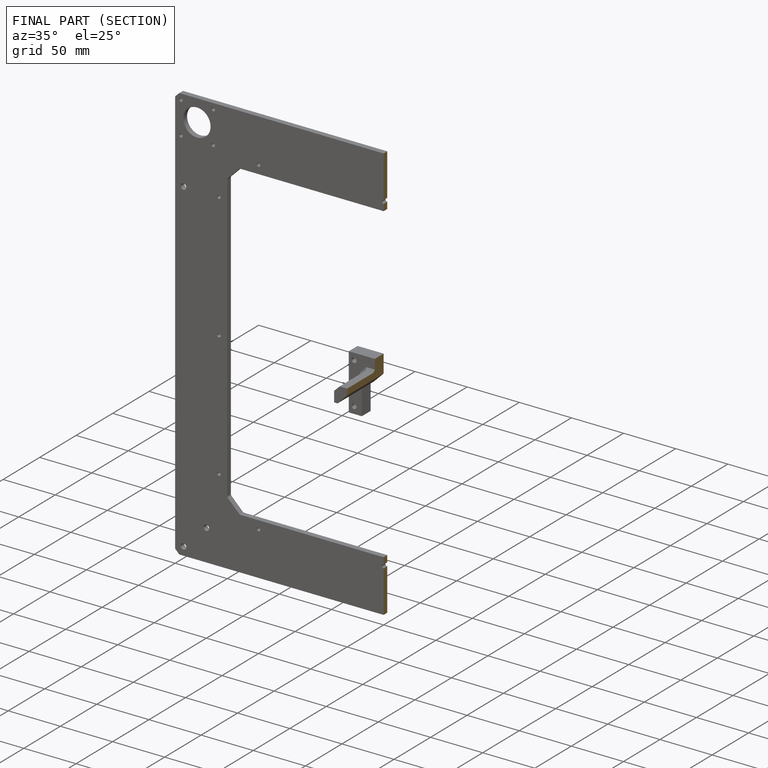
[diagram: finished part — half-section view (interior)]
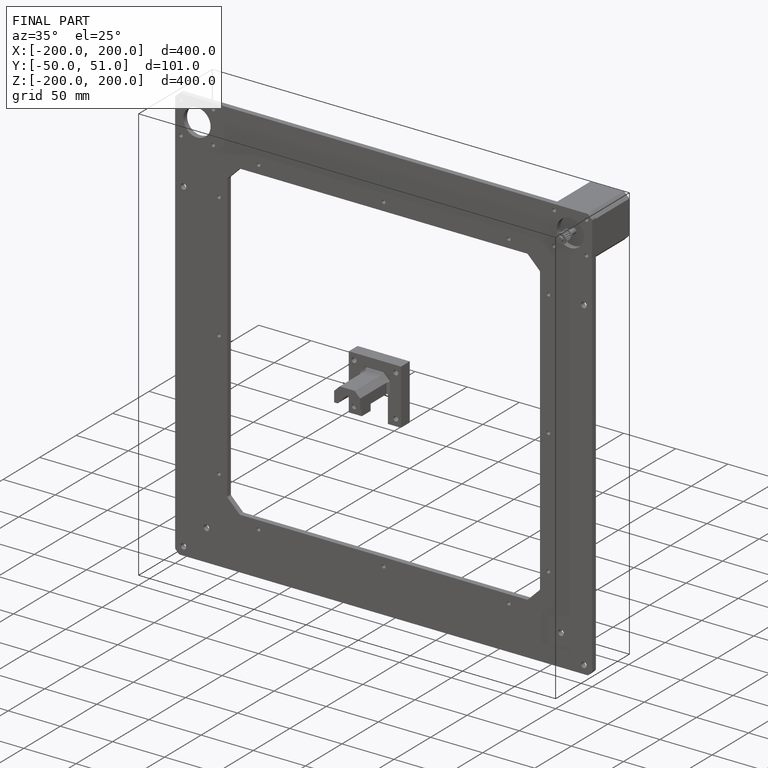
[diagram: finished part — iso view with bounding-box wireframe]
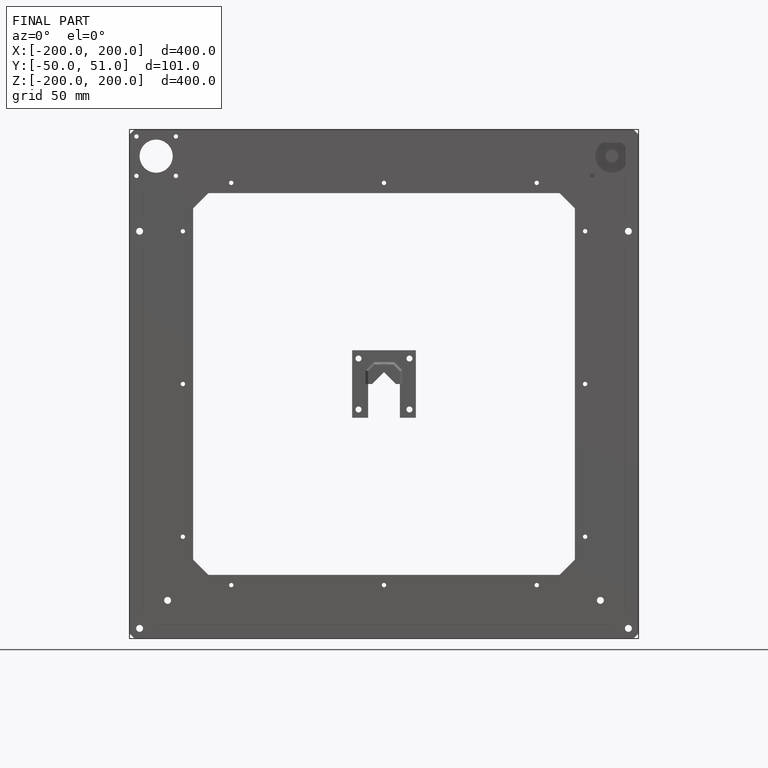
[diagram: finished part — front view with bounding-box wireframe]
